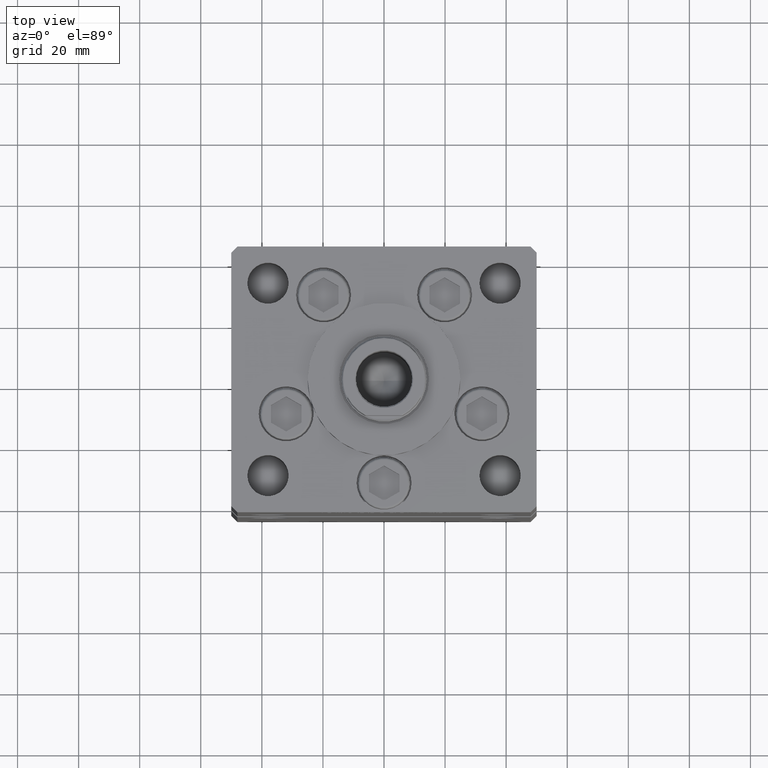
[diagram: clean part render]
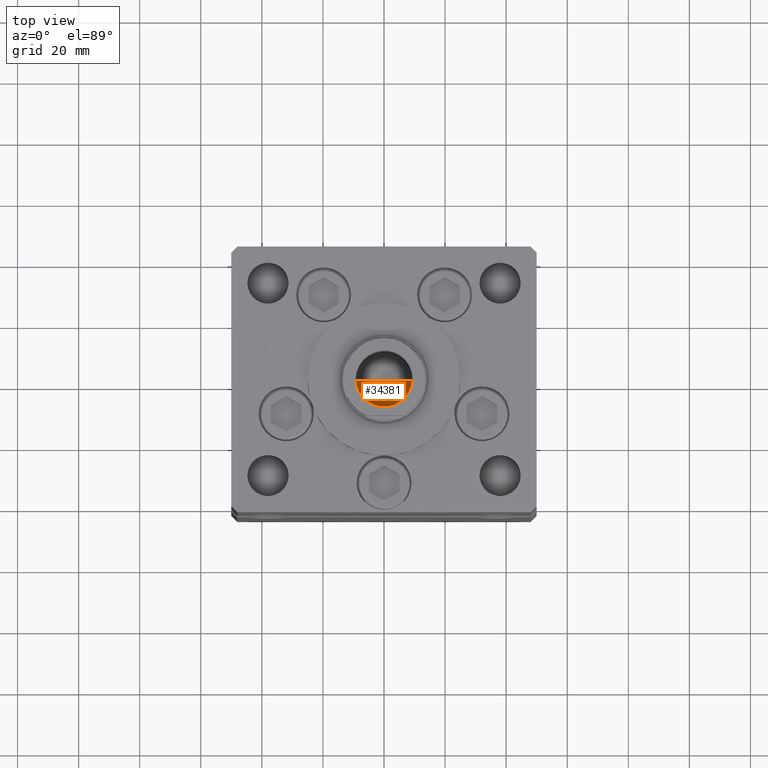
[diagram: same view with one face highlighted and labeled with its STEP entity id]
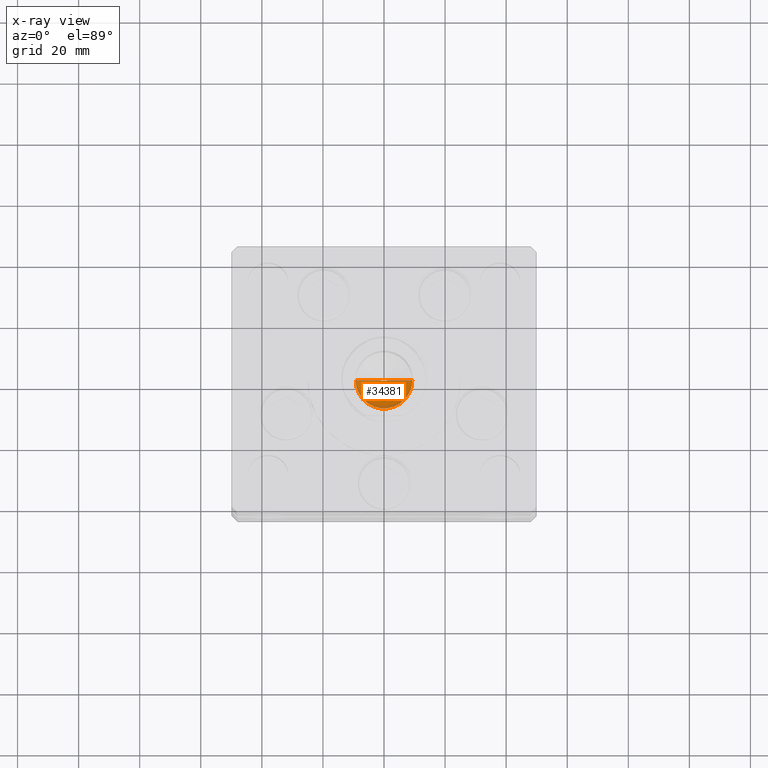
[diagram: x-ray of the same camera — body ghosted, the highlighted face saturated]
A machine part, top view. The second image highlights one B-rep face of the part: STEP entity #34381.
The next image is the same camera in x-ray: the body ghosted, the highlighted face saturated — about 9% of this face is hidden behind the body in this view.
In plain terms, the highlighted conical surface has half-angle 59 deg.
Its self-contained STEP definition (entity closure, byte-faithful):
#108 = CONICAL_SURFACE ( 'NONE', #30177, 9.249999999999994671, 1.029744258676653423 ) ;
#247 = VERTEX_POINT ( 'NONE', #8408 ) ;
#4155 = DIRECTION ( 'NONE',  ( -0.8571673007021117785, 1.049727191138617956E-16, 0.5150380749100550437 ) ) ;
#6257 = DIRECTION ( 'NONE',  ( 0.8571673007021117785, 0.000000000000000000, 0.5150380749100550437 ) ) ;
#7393 = VERTEX_POINT ( 'NONE', #50689 ) ;
#8408 = CARTESIAN_POINT ( 'NONE',  ( -9.249999999999994671, 1.132798289211300909E-15, 130.2500000000000000 ) ) ;
#8833 = VERTEX_POINT ( 'NONE', #22786 ) ;
#9160 = ORIENTED_EDGE ( 'NONE', *, *, #24340, .T. ) ;
#9771 = LINE ( 'NONE', #31270, #32275 ) ;
#11974 = LINE ( 'NONE', #20296, #18617 ) ;
#12220 = ORIENTED_EDGE ( 'NONE', *, *, #13869, .F. ) ;
#13869 = EDGE_CURVE ( 'NONE', #7393, #8833, #9771, .T. ) ;
#15404 = DIRECTION ( 'NONE',  ( -0.000000000000000000, -0.000000000000000000, 1.000000000000000000 ) ) ;
#18617 = VECTOR ( 'NONE', #4155, 1000.000000000000000 ) ;
#19552 = AXIS2_PLACEMENT_3D ( 'NONE', #30192, #35021, #42855 ) ;
#20296 = CARTESIAN_POINT ( 'NONE',  ( -9.249999999999994671, 1.132798289211300909E-15, 130.2500000000000000 ) ) ;
#22786 = CARTESIAN_POINT ( 'NONE',  ( 9.249999999999994671, 0.000000000000000000, 130.2500000000000000 ) ) ;
#23472 = FACE_OUTER_BOUND ( 'NONE', #45645, .T. ) ;
#24340 = EDGE_CURVE ( 'NONE', #247, #8833, #48802, .T. ) ;
#30177 = AXIS2_PLACEMENT_3D ( 'NONE', #39902, #15404, #52547 ) ;
#30192 = CARTESIAN_POINT ( 'NONE',  ( 0.000000000000000000, 0.000000000000000000, 130.2500000000000000 ) ) ;
#31270 = CARTESIAN_POINT ( 'NONE',  ( 9.249999999999994671, 0.000000000000000000, 130.2500000000000000 ) ) ;
#32275 = VECTOR ( 'NONE', #6257, 1000.000000000000000 ) ;
#34381 = ADVANCED_FACE ( 'NONE', ( #23472 ), #108, .F. ) ;
#35021 = DIRECTION ( 'NONE',  ( -0.000000000000000000, -0.000000000000000000, 1.000000000000000000 ) ) ;
#35595 = ORIENTED_EDGE ( 'NONE', *, *, #52657, .T. ) ;
#39902 = CARTESIAN_POINT ( 'NONE',  ( 0.000000000000000000, 0.000000000000000000, 130.2500000000000000 ) ) ;
#42855 = DIRECTION ( 'NONE',  ( 1.000000000000000000, 0.000000000000000000, 0.000000000000000000 ) ) ;
#45645 = EDGE_LOOP ( 'NONE', ( #12220, #35595, #9160 ) ) ;
#48802 = CIRCLE ( 'NONE', #19552, 9.249999999999994671 ) ;
#50689 = CARTESIAN_POINT ( 'NONE',  ( -1.046994375366439223E-14, 0.000000000000000000, 124.6920392739950643 ) ) ;
#52547 = DIRECTION ( 'NONE',  ( 1.000000000000000000, 0.000000000000000000, 0.000000000000000000 ) ) ;
#52657 = EDGE_CURVE ( 'NONE', #7393, #247, #11974, .T. ) ;